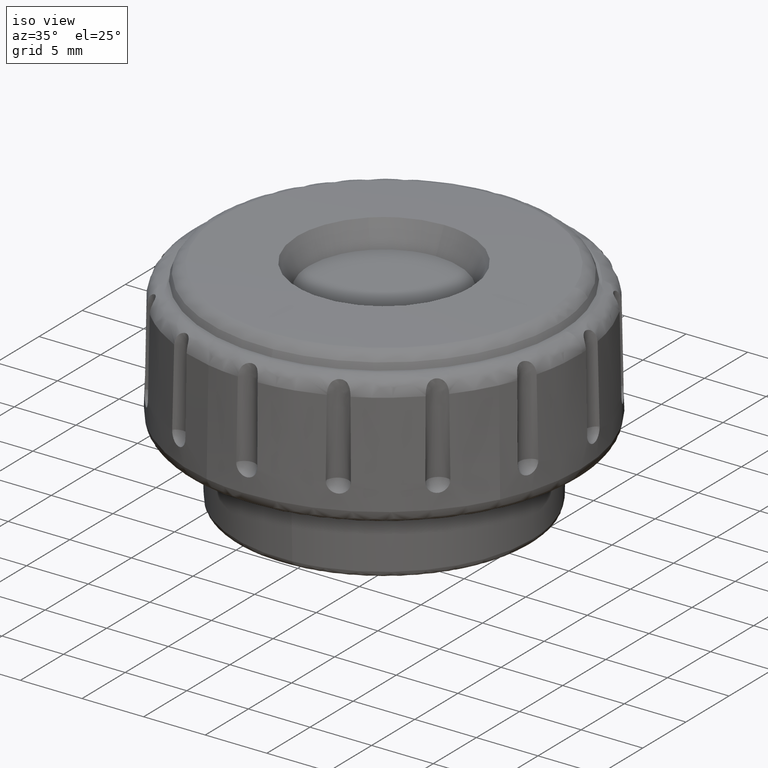
[diagram: clean part render]
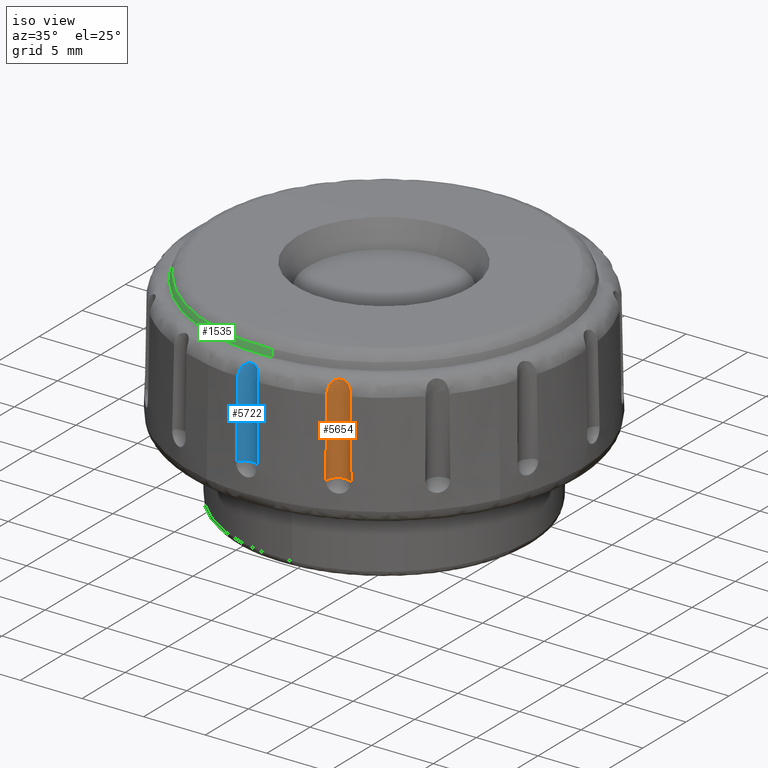
[diagram: same view with three faces highlighted in distinct colors, each labeled with its STEP entity id]
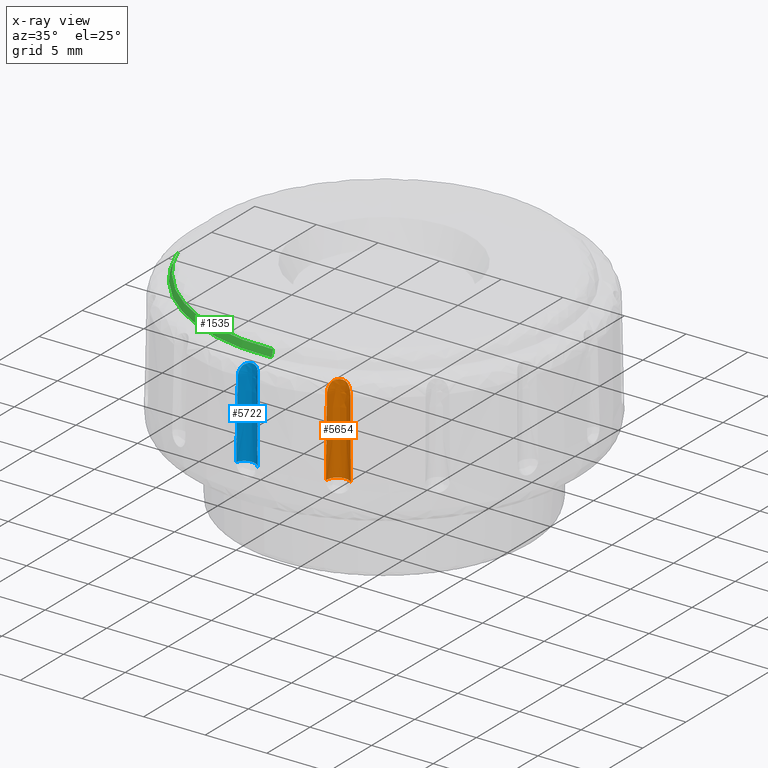
[diagram: x-ray of the same camera — body ghosted, the three highlighted faces saturated]
A machine part, iso view with three faces highlighted in distinct colors.
The next image is the same camera in x-ray (body ghosted, the three faces saturated) — at least one of them is partly hidden behind the body in this view.
Their STEP definitions:

[orange] entity #5654 — the highlighted face is a freeform B-spline surface patch.
#1661=CARTESIAN_POINT('',(7.155010178623190,-14.099589164040040,15.326313504426750));
#1662=VERTEX_POINT('',#1661);
#1676=CARTESIAN_POINT('',(7.252637012994430,-14.191353394448839,9.099991000000141));
#1677=VERTEX_POINT('',#1676);
#1678=CARTESIAN_POINT('',(7.252637012994433,-14.191353394448850,9.099991000000141));
#1679=CARTESIAN_POINT('',(7.223180425894960,-14.159211945075230,11.175456212780770));
#1680=CARTESIAN_POINT('',(7.190818944673186,-14.128543288575480,13.250901112458671));
#1681=CARTESIAN_POINT('',(7.155010178623210,-14.099589164040051,15.326313504426750));
#1682=QUASI_UNIFORM_CURVE('',3,(#1678,#1679,#1680,#1681),.UNSPECIFIED.,.F.,.U.);
#1683=EDGE_CURVE('',#1677,#1662,#1682,.T.);
#1685=CARTESIAN_POINT('',(5.693269439400051,-14.885628569153020,9.099991000000120));
#1686=VERTEX_POINT('',#1685);
#1737=CARTESIAN_POINT('',(5.690400429287561,-14.751675437226821,15.326313504426750));
#1738=VERTEX_POINT('',#1737);
#1739=CARTESIAN_POINT('',(5.690400429287561,-14.751675437226830,15.326313504426750));
#1740=CARTESIAN_POINT('',(5.687956795890854,-14.797660625099700,13.250901213142811));
#1741=CARTESIAN_POINT('',(5.689093991753419,-14.842231232940700,11.175456137433750));
#1742=CARTESIAN_POINT('',(5.693269439400052,-14.885628569153040,9.099991000000120));
#1743=QUASI_UNIFORM_CURVE('',3,(#1739,#1740,#1741,#1742),.UNSPECIFIED.,.F.,.U.);
#1744=EDGE_CURVE('',#1738,#1686,#1743,.T.);
#4410=CARTESIAN_POINT('',(7.155010178623179,-14.099589164040040,15.326313504426750));
#4411=CARTESIAN_POINT('',(7.153872079229410,-14.098668923685070,15.392275721103600));
#4412=CARTESIAN_POINT('',(7.148539027649565,-14.094299853092020,15.457215844345249));
#4413=CARTESIAN_POINT('',(7.129177985886060,-14.079364062275941,15.585084659193910));
#4414=CARTESIAN_POINT('',(7.115112860406698,-14.068754201411579,15.648165348789490));
#4415=CARTESIAN_POINT('',(7.076418985129701,-14.042400173702790,15.771480120165689));
#4416=CARTESIAN_POINT('',(7.052274401676002,-14.026993939427390,15.830187260820811));
#4417=CARTESIAN_POINT('',(7.007424465464729,-14.002362371140689,15.913622888200081));
#4418=CARTESIAN_POINT('',(6.991024899165778,-13.993902433491490,15.940659858825740));
#4419=CARTESIAN_POINT('',(6.954928545796283,-13.976881949035810,15.993099398981199));
#4420=CARTESIAN_POINT('',(6.935289303765049,-13.968362239756109,16.018370617664150));
#4421=CARTESIAN_POINT('',(6.872469715871786,-13.944017231579590,16.089836993467131));
#4422=CARTESIAN_POINT('',(6.824858456605252,-13.929128694227231,16.132419336099549));
#4423=CARTESIAN_POINT('',(6.717624058069604,-13.906972231732640,16.206696576304651));
#4424=CARTESIAN_POINT('',(6.660258309357451,-13.900193439262720,16.236916716465380));
#4425=CARTESIAN_POINT('',(6.569122926503893,-13.899143389727969,16.273372733730451));
#4426=CARTESIAN_POINT('',(6.537611612275643,-13.900352380077109,16.284103694936629));
#4427=CARTESIAN_POINT('',(6.474586606004428,-13.906191922838360,16.302198413553530));
#4428=CARTESIAN_POINT('',(6.443059561454811,-13.910785872488860,16.309608231862089));
#4429=CARTESIAN_POINT('',(6.380067265446056,-13.923463378222630,16.321470491403609));
#4430=CARTESIAN_POINT('',(6.348601795765532,-13.931545253071469,16.325923424713789));
#4431=CARTESIAN_POINT('',(6.285794141848523,-13.951453023181161,16.331938362176221));
#4432=CARTESIAN_POINT('',(6.254943466534269,-13.963139377276940,16.333442616285950));
#4433=CARTESIAN_POINT('',(6.195103786972684,-13.989611566164230,16.333568197326350));
#4434=CARTESIAN_POINT('',(6.165986504078414,-14.004437636349691,16.332201752975369));
#4435=CARTESIAN_POINT('',(6.109360703456350,-14.037272097609470,16.326516220408550));
#4436=CARTESIAN_POINT('',(6.081714636102221,-14.055409816732441,16.322144624058801));
#4437=CARTESIAN_POINT('',(6.029660307390033,-14.093717537669241,16.310487336771359));
#4438=CARTESIAN_POINT('',(6.005056914140068,-14.113979221621459,16.303198625291209));
#4439=CARTESIAN_POINT('',(5.958569259411425,-14.156485693716700,16.285489112634881));
#4440=CARTESIAN_POINT('',(5.936591930343115,-14.178839377608631,16.275010779707198));
#4441=CARTESIAN_POINT('',(5.875313556136472,-14.247846847711330,16.238602871068771));
#4442=CARTESIAN_POINT('',(5.841669095699775,-14.295158960809211,16.208460699983139));
#4443=CARTESIAN_POINT('',(5.799977422945171,-14.365863587420360,16.153291029476762));
#4444=CARTESIAN_POINT('',(5.787620073782566,-14.389306200205370,16.133261844905380));
#4445=CARTESIAN_POINT('',(5.766063632782382,-14.434489351810230,16.090859748792742));
#4446=CARTESIAN_POINT('',(5.756765933131971,-14.456393644669181,16.068364298256711));
#4447=CARTESIAN_POINT('',(5.740603058117427,-14.498587612265350,16.020775310077280));
#4448=CARTESIAN_POINT('',(5.733710562348033,-14.518977953581510,15.995538181463861));
#4449=CARTESIAN_POINT('',(5.722070583673449,-14.557347453599331,15.943208481862390));
#4450=CARTESIAN_POINT('',(5.717314969428277,-14.575312270280580,15.916170960119111));
#4451=CARTESIAN_POINT('',(5.709385927126546,-14.608797425340420,15.860425718516611));
#4452=CARTESIAN_POINT('',(5.706213849121438,-14.624317979147680,15.831717933635810));
#4453=CARTESIAN_POINT('',(5.701026223483047,-14.652879611350491,15.772672126267000));
#4454=CARTESIAN_POINT('',(5.699011033868906,-14.665937812188821,15.742256066367601));
#4455=CARTESIAN_POINT('',(5.694252125510992,-14.700752129798980,15.650174610634000));
#4456=CARTESIAN_POINT('',(5.692698057501048,-14.718441833733509,15.587218446226860));
#4457=CARTESIAN_POINT('',(5.690804739832751,-14.743205357754350,15.458347906808440));
#4458=CARTESIAN_POINT('',(5.690478195154371,-14.750212010675160,15.392361151363779));
#4459=CARTESIAN_POINT('',(5.690400429287561,-14.751675437226821,15.326313504426750));
#4460=B_SPLINE_CURVE_WITH_KNOTS('',3,(#4410,#4411,#4412,#4413,#4414,#4415,#4416,#4417,#4418,#4419,#4420,#4421,#4422,#4423,#4424,#4425,#4426,#4427,#4428,#4429,#4430,#4431,#4432,#4433,#4434,#4435,#4436,#4437,#4438,#4439,#4440,#4441,#4442,#4443,#4444,#4445,#4446,#4447,#4448,#4449,#4450,#4451,#4452,#4453,#4454,#4455,#4456,#4457,#4458,#4459),.UNSPECIFIED.,.F.,.U.,(4,2,2,2,2,2,2,2,2,2,2,2,2,2,2,2,2,2,2,2,2,2,2,2,4),(0.0,0.062500000000001,0.125000000000002,0.187500000000003,0.218750000000003,0.250000000000003,0.312500000000002,0.375000000000001,0.406250000000000,0.437499999999999,0.468749999999999,0.499999999999998,0.531249999999997,0.562499999999997,0.593749999999996,0.624999999999996,0.687499999999994,0.718749999999995,0.749999999999996,0.781249999999997,0.812499999999999,0.843750000000000,0.875000000000001,0.937500000000000,1.0),.UNSPECIFIED.);
#4461=EDGE_CURVE('',#1662,#1738,#4460,.T.);
#5287=CARTESIAN_POINT('',(7.252637012994429,-14.191353394448839,9.099991000000141));
#5288=CARTESIAN_POINT('',(6.814916003351801,-13.713735684573345,9.099991000000141));
#5289=CARTESIAN_POINT('',(6.223069418849854,-13.977242761295500,9.099991000000141));
#5290=CARTESIAN_POINT('',(5.631222834347908,-14.240749838017640,9.099991000000141));
#5291=CARTESIAN_POINT('',(5.693269439400053,-14.885628569153020,9.099991000000141));
#5299=(BOUNDED_CURVE()B_SPLINE_CURVE(2,(#5287,#5288,#5289,#5290,#5291),.UNSPECIFIED.,.F.,.U.)B_SPLINE_CURVE_WITH_KNOTS((3,2,3),(0.0,0.500000000000000,1.0),.UNSPECIFIED.)CURVE()GEOMETRIC_REPRESENTATION_ITEM()RATIONAL_B_SPLINE_CURVE((1.0,0.811595594625452,1.0,0.811595594625452,1.0))REPRESENTATION_ITEM(''));
#5300=EDGE_CURVE('',#1677,#1686,#5299,.T.);
#5630=CARTESIAN_POINT('',(7.257918182909921,-14.197166644862010,16.514345387048291));
#5631=CARTESIAN_POINT('',(7.257918182909921,-14.197166644862010,8.914632140323915));
#5632=CARTESIAN_POINT('',(6.812264025186088,-13.702291196213684,16.514345387048294));
#5633=CARTESIAN_POINT('',(6.812264025186088,-13.702291196213684,8.914632140323915));
#5634=CARTESIAN_POINT('',(6.208715614223856,-13.983784808212951,16.514345387048291));
#5635=CARTESIAN_POINT('',(6.208715614223856,-13.983784808212951,8.914632140323915));
#5636=CARTESIAN_POINT('',(5.605167203261628,-14.265278420212214,16.514345387048294));
#5637=CARTESIAN_POINT('',(5.605167203261628,-14.265278420212214,8.914632140323915));
#5638=CARTESIAN_POINT('',(5.697900405394010,-14.924755403278100,16.514345387048291));
#5639=CARTESIAN_POINT('',(5.697900405394010,-14.924755403278100,8.914632140323915));
#5647=(BOUNDED_SURFACE()B_SPLINE_SURFACE(1,2,((#5630,#5632,#5634,#5636,#5638),(#5631,#5633,#5635,#5637,#5639)),.UNSPECIFIED.,.F.,.F.,.U.)B_SPLINE_SURFACE_WITH_KNOTS((2,2),(3,2,3),(0.0,7.599713246724376),(0.0,1.0,2.0),.UNSPECIFIED.)GEOMETRIC_REPRESENTATION_ITEM()RATIONAL_B_SPLINE_SURFACE(((1.0,0.803856860617218,1.0,0.803856860617218,1.0),(1.0,0.803856860617218,1.0,0.803856860617218,1.0)))REPRESENTATION_ITEM('')SURFACE());
#5648=ORIENTED_EDGE('',*,*,#1744,.T.);
#5649=ORIENTED_EDGE('',*,*,#5300,.F.);
#5650=ORIENTED_EDGE('',*,*,#1683,.T.);
#5651=ORIENTED_EDGE('',*,*,#4461,.T.);
#5652=EDGE_LOOP('',(#5648,#5649,#5650,#5651));
#5653=FACE_OUTER_BOUND('',#5652,.T.);
#5654=ADVANCED_FACE('',(#5653),#5647,.F.);

[blue] entity #5722 — the highlighted face is a freeform B-spline surface patch.
#1746=CARTESIAN_POINT('',(0.801607482738218,-15.790820456662001,15.326313504426750));
#1747=VERTEX_POINT('',#1746);
#1761=CARTESIAN_POINT('',(0.853470158791178,-15.914359663412300,9.099991000000141));
#1762=VERTEX_POINT('',#1761);
#1763=CARTESIAN_POINT('',(0.853470158791174,-15.914359663412300,9.099991000000141));
#1764=CARTESIAN_POINT('',(0.839633332670613,-15.873015914981670,11.175456212780770));
#1765=CARTESIAN_POINT('',(0.822543714890227,-15.831836102907220,13.250901112458671));
#1766=CARTESIAN_POINT('',(0.801607482738221,-15.790820456662020,15.326313504426750));
#1767=QUASI_UNIFORM_CURVE('',3,(#1763,#1764,#1765,#1766),.UNSPECIFIED.,.F.,.U.);
#1768=EDGE_CURVE('',#1762,#1747,#1767,.T.);
#1770=CARTESIAN_POINT('',(-0.853470158791143,-15.914359663412300,9.099991000000101));
#1771=VERTEX_POINT('',#1770);
#1820=CARTESIAN_POINT('',(-0.801607482738216,-15.790820456662001,15.326313504426750));
#1821=VERTEX_POINT('',#1820);
#1822=CARTESIAN_POINT('',(-0.801607482738210,-15.790820456662010,15.326313504426750));
#1823=CARTESIAN_POINT('',(-0.822543713874540,-15.831836100917430,13.250901213142800));
#1824=CARTESIAN_POINT('',(-0.839633333172940,-15.873015916482601,11.175456137433740));
#1825=CARTESIAN_POINT('',(-0.853470158791173,-15.914359663412300,9.099991000000101));
#1826=QUASI_UNIFORM_CURVE('',3,(#1822,#1823,#1824,#1825),.UNSPECIFIED.,.F.,.U.);
#1827=EDGE_CURVE('',#1821,#1771,#1826,.T.);
#4356=CARTESIAN_POINT('',(0.801607482738201,-15.790820456661990,15.326313504426750));
#4357=CARTESIAN_POINT('',(0.800942072679481,-15.789516868538859,15.392275721103600));
#4358=CARTESIAN_POINT('',(0.797847148739714,-15.783356376447530,15.457215844345249));
#4359=CARTESIAN_POINT('',(0.786234890399651,-15.761837007457849,15.585084659193910));
#4360=CARTESIAN_POINT('',(0.777701178098277,-15.746423615337090,15.648165348789480));
#4361=CARTESIAN_POINT('',(0.753071712862186,-15.706609796095369,15.771480120165680));
#4362=CARTESIAN_POINT('',(0.737280818333001,-15.682715013931279,15.830187260820811));
#4363=CARTESIAN_POINT('',(0.706326924230261,-15.641970844111601,15.913622888200081));
#4364=CARTESIAN_POINT('',(0.694786141570609,-15.627572001955910,15.940659858825731));
#4365=CARTESIAN_POINT('',(0.668733336623469,-15.597341306097769,15.993099398981190));
#4366=CARTESIAN_POINT('',(0.654257274226700,-15.581570165008531,16.018370617664150));
#4367=CARTESIAN_POINT('',(0.606770731957198,-15.533778865073479,16.089836993467120));
#4368=CARTESIAN_POINT('',(0.569331396024630,-15.500812265637609,16.132419336099542));
#4369=CARTESIAN_POINT('',(0.480379743516834,-15.436955170685611,16.206696576304640));
#4370=CARTESIAN_POINT('',(0.430730707649900,-15.407429683557710,16.236916716465380));
#4371=CARTESIAN_POINT('',(0.347901486236340,-15.369402315887649,16.273372733730440));
#4372=CARTESIAN_POINT('',(0.318622727582656,-15.357689977361339,16.284103694936618));
#4373=CARTESIAN_POINT('',(0.258671363365882,-15.337390085645000,16.302198413553509));
#4374=CARTESIAN_POINT('',(0.228001447365379,-15.328763663214650,16.309608231862079));
#4375=CARTESIAN_POINT('',(0.165298715355378,-15.314723865973731,16.321470491403598));
#4376=CARTESIAN_POINT('',(0.133266383810367,-15.309308866520469,16.325923424713789));
#4377=CARTESIAN_POINT('',(0.067791517283760,-15.301949345162290,16.331938362176210));
#4378=CARTESIAN_POINT('',(0.034854754550503,-15.300077260748960,16.333442616285939));
#4379=CARTESIAN_POINT('',(-0.030578722142656,-15.299921818273180,16.333568197326340));
#4380=CARTESIAN_POINT('',(-0.063208989686853,-15.301623041445900,16.332201752975362));
#4381=CARTESIAN_POINT('',(-0.128294211180517,-15.308587026327411,16.326516220408539));
#4382=CARTESIAN_POINT('',(-0.160927425422691,-15.313911988614340,16.322144624058790));
#4383=CARTESIAN_POINT('',(-0.224062574786062,-15.327735430150820,16.310487336771349));
#4384=CARTESIAN_POINT('',(-0.254780062245951,-15.336238297910800,16.303198625291198));
#4385=CARTESIAN_POINT('',(-0.314537587828770,-15.356161659785030,16.285489112634860));
#4386=CARTESIAN_POINT('',(-0.343706939316824,-15.367643781117071,16.275010779707198));
#4387=CARTESIAN_POINT('',(-0.427755386461750,-15.405761081754830,16.238602871068760));
#4388=CARTESIAN_POINT('',(-0.477734700526785,-15.435298412870759,16.208460699983132));
#4389=CARTESIAN_POINT('',(-0.544580101271023,-15.482932772325270,16.153291029476740));
#4390=CARTESIAN_POINT('',(-0.565404071096123,-15.499322478034580,16.133261844905370));
#4391=CARTESIAN_POINT('',(-0.603474503262124,-15.531831546496090,16.090859748792731));
#4392=CARTESIAN_POINT('',(-0.620877653090686,-15.548060398596130,16.068364298256700));
#4393=CARTESIAN_POINT('',(-0.652805006880782,-15.580032472507639,16.020775310077259));
#4394=CARTESIAN_POINT('',(-0.667395114060829,-15.595856545605150,15.995538181463861));
#4395=CARTESIAN_POINT('',(-0.693635045339801,-15.626174422206869,15.943208481862390));
#4396=CARTESIAN_POINT('',(-0.705286464362188,-15.640651816309580,15.916170960119119));
#4397=CARTESIAN_POINT('',(-0.726149644502300,-15.668016995564340,15.860425718516611));
#4398=CARTESIAN_POINT('',(-0.735360259909395,-15.680905526635680,15.831717933635810));
#4399=CARTESIAN_POINT('',(-0.751716454150236,-15.704887878559729,15.772672126267009));
#4400=CARTESIAN_POINT('',(-0.758868670242117,-15.715997487161751,15.742256066367601));
#4401=CARTESIAN_POINT('',(-0.777376408031555,-15.745866326465240,15.650174610634000));
#4402=CARTESIAN_POINT('',(-0.785991170598242,-15.761394578736191,15.587218446226860));
#4403=CARTESIAN_POINT('',(-0.797793034984957,-15.783247101947980,15.458347906808450));
#4404=CARTESIAN_POINT('',(-0.800941210880814,-15.789515180210760,15.392361151363790));
#4405=CARTESIAN_POINT('',(-0.801607482738216,-15.790820456662001,15.326313504426750));
#4406=B_SPLINE_CURVE_WITH_KNOTS('',3,(#4356,#4357,#4358,#4359,#4360,#4361,#4362,#4363,#4364,#4365,#4366,#4367,#4368,#4369,#4370,#4371,#4372,#4373,#4374,#4375,#4376,#4377,#4378,#4379,#4380,#4381,#4382,#4383,#4384,#4385,#4386,#4387,#4388,#4389,#4390,#4391,#4392,#4393,#4394,#4395,#4396,#4397,#4398,#4399,#4400,#4401,#4402,#4403,#4404,#4405),.UNSPECIFIED.,.F.,.U.,(4,2,2,2,2,2,2,2,2,2,2,2,2,2,2,2,2,2,2,2,2,2,2,2,4),(0.0,0.062499999999999,0.124999999999999,0.187499999999998,0.218749999999999,0.249999999999999,0.312500000000000,0.375000000000002,0.406250000000003,0.437500000000003,0.468750000000004,0.500000000000005,0.531250000000006,0.562500000000006,0.593750000000007,0.625000000000008,0.687500000000010,0.718750000000010,0.750000000000010,0.781250000000010,0.812500000000010,0.843750000000009,0.875000000000009,0.937500000000004,1.0),.UNSPECIFIED.);
#4407=EDGE_CURVE('',#1747,#1821,#4406,.T.);
#5680=CARTESIAN_POINT('',(0.853470158791174,-15.914359663412300,9.099991000000141));
#5681=CARTESIAN_POINT('',(0.647856742705720,-15.299997000000099,9.099991000000141));
#5682=CARTESIAN_POINT('',(1.983862E-015,-15.299997000000101,9.099991000000141));
#5683=CARTESIAN_POINT('',(-0.647856742705708,-15.299997000000099,9.099991000000141));
#5684=CARTESIAN_POINT('',(-0.853470158791167,-15.914359663412290,9.099991000000141));
#5692=(BOUNDED_CURVE()B_SPLINE_CURVE(2,(#5680,#5681,#5682,#5683,#5684),.UNSPECIFIED.,.F.,.U.)B_SPLINE_CURVE_WITH_KNOTS((3,2,3),(0.0,0.500000000000000,1.0),.UNSPECIFIED.)CURVE()GEOMETRIC_REPRESENTATION_ITEM()RATIONAL_B_SPLINE_CURVE((1.0,0.811595594625454,1.0,0.811595594625454,1.0))REPRESENTATION_ITEM(''));
#5693=EDGE_CURVE('',#1762,#1771,#5692,.T.);
#5698=CARTESIAN_POINT('',(0.855930285620099,-15.921818377244330,16.514345387048269));
#5699=CARTESIAN_POINT('',(0.855930285620099,-15.921818377244330,8.914632140323896));
#5700=CARTESIAN_POINT('',(0.650088932875791,-15.288463282947443,16.514345387048269));
#5701=CARTESIAN_POINT('',(0.650088932875791,-15.288463282947443,8.914632140323896));
#5702=CARTESIAN_POINT('',(-0.015773743218027,-15.300135238936280,16.514345387048269));
#5703=CARTESIAN_POINT('',(-0.015773743218027,-15.300135238936280,8.914632140323896));
#5704=CARTESIAN_POINT('',(-0.681636419311844,-15.311807194925109,16.514345387048269));
#5705=CARTESIAN_POINT('',(-0.681636419311844,-15.311807194925109,8.914632140323896));
#5706=CARTESIAN_POINT('',(-0.865153878009124,-15.951987388561809,16.514345387048269));
#5707=CARTESIAN_POINT('',(-0.865153878009124,-15.951987388561809,8.914632140323896));
#5715=(BOUNDED_SURFACE()B_SPLINE_SURFACE(1,2,((#5698,#5700,#5702,#5704,#5706),(#5699,#5701,#5703,#5705,#5707)),.UNSPECIFIED.,.F.,.F.,.U.)B_SPLINE_SURFACE_WITH_KNOTS((2,2),(3,2,3),(0.0,7.599713246724378),(0.0,1.0,2.0),.UNSPECIFIED.)GEOMETRIC_REPRESENTATION_ITEM()RATIONAL_B_SPLINE_SURFACE(((1.0,0.803856860617218,1.0,0.803856860617218,1.0),(1.0,0.803856860617218,1.0,0.803856860617218,1.0)))REPRESENTATION_ITEM('')SURFACE());
#5716=ORIENTED_EDGE('',*,*,#1827,.T.);
#5717=ORIENTED_EDGE('',*,*,#5693,.F.);
#5718=ORIENTED_EDGE('',*,*,#1768,.T.);
#5719=ORIENTED_EDGE('',*,*,#4407,.T.);
#5720=EDGE_LOOP('',(#5716,#5717,#5718,#5719));
#5721=FACE_OUTER_BOUND('',#5720,.T.);
#5722=ADVANCED_FACE('',(#5721),#5715,.F.);

[green] entity #1535 — the highlighted face is a freeform B-spline surface patch.
#1346=CARTESIAN_POINT('',(-13.386852536119790,-5.028136793272843,16.599995626887370));
#1347=VERTEX_POINT('',#1346);
#1363=CARTESIAN_POINT('',(-13.208094983608211,-4.960994989446715,17.124623626886901));
#1364=VERTEX_POINT('',#1363);
#1365=CARTESIAN_POINT('',(-13.208094983608211,-4.960994989446715,17.124623626886901));
#1366=CARTESIAN_POINT('',(-13.386852536119790,-5.028136793272843,16.599995626887370));
#1367=QUASI_UNIFORM_CURVE('',1,(#1365,#1366),.UNSPECIFIED.,.F.,.U.);
#1368=EDGE_CURVE('',#1364,#1347,#1367,.T.);
#1432=CARTESIAN_POINT('',(0.861336793931195,-14.082732096747860,17.124623626884929));
#1433=VERTEX_POINT('',#1432);
#1447=CARTESIAN_POINT('',(0.872994073602696,-14.273326934641331,16.599995626885249));
#1448=VERTEX_POINT('',#1447);
#1449=CARTESIAN_POINT('',(0.861336793931195,-14.082732096747860,17.124623626884929));
#1450=CARTESIAN_POINT('',(0.872994073602696,-14.273326934641331,16.599995626885249));
#1451=QUASI_UNIFORM_CURVE('',1,(#1449,#1450),.UNSPECIFIED.,.F.,.U.);
#1452=EDGE_CURVE('',#1433,#1448,#1451,.T.);
#1487=CARTESIAN_POINT('',(0.861045333476222,-14.077966760706380,17.137740607097680));
#1488=CARTESIAN_POINT('',(-9.539701957722903,-14.714103716559169,17.137740607097680));
#1489=CARTESIAN_POINT('',(-13.203625608588718,-4.959316280504312,17.137740607097683));
#1490=CARTESIAN_POINT('',(0.873292792089905,-14.278210938989609,16.586552002382859));
#1491=CARTESIAN_POINT('',(-9.675394122085939,-14.923396269807723,16.586552002382852));
#1492=CARTESIAN_POINT('',(-13.391433209309220,-5.029857306088207,16.586552002382859));
#1500=(BOUNDED_SURFACE()B_SPLINE_SURFACE(2,1,((#1487,#1490),(#1488,#1491),(#1489,#1492)),.UNSPECIFIED.,.F.,.F.,.U.)B_SPLINE_SURFACE_WITH_KNOTS((3,3),(2,2),(0.0,18.831657407131878),(0.0,1.0),.UNSPECIFIED.)GEOMETRIC_REPRESENTATION_ITEM()RATIONAL_B_SPLINE_SURFACE(((1.0,1.0),(0.765685424949238,0.765685424949238),(0.906274169979695,0.906274169979695)))REPRESENTATION_ITEM('')SURFACE());
#1501=CARTESIAN_POINT('',(0.872994073602696,-14.273326934641327,16.599995626885256));
#1502=CARTESIAN_POINT('',(0.436904494285213,-14.299999315932622,16.599995626888102));
#1503=CARTESIAN_POINT('',(0.0,-14.299999315932620,16.599995626888099));
#1504=CARTESIAN_POINT('',(-9.904316744632798,-14.299999315932613,16.599995626888099));
#1505=CARTESIAN_POINT('',(-13.386852536119791,-5.028136793272844,16.599995626887370));
#1513=(BOUNDED_CURVE()B_SPLINE_CURVE(2,(#1501,#1502,#1503,#1504,#1505),.UNSPECIFIED.,.F.,.U.)B_SPLINE_CURVE_WITH_KNOTS((3,2,3),(0.739332962241594,0.750000000000000,0.940284170898823),.UNSPECIFIED.)CURVE()GEOMETRIC_REPRESENTATION_ITEM()RATIONAL_B_SPLINE_CURVE((0.976072041672399,0.987502787902943,1.0,0.777068226784778,0.893499554635660))REPRESENTATION_ITEM(''));
#1514=EDGE_CURVE('',#1448,#1347,#1513,.T.);
#1515=ORIENTED_EDGE('',*,*,#1514,.F.);
#1516=ORIENTED_EDGE('',*,*,#1452,.F.);
#1517=CARTESIAN_POINT('',(0.861336793931195,-14.082732096747856,17.124623626884937));
#1518=CARTESIAN_POINT('',(0.431070413581802,-14.109048315932602,17.124623626888003));
#1519=CARTESIAN_POINT('',(0.0,-14.109048315932601,17.124623626887999));
#1520=CARTESIAN_POINT('',(-9.772062249722376,-14.109048315932604,17.124623626887999));
#1521=CARTESIAN_POINT('',(-13.208094983608209,-4.960994989446715,17.124623626886905));
#1529=(BOUNDED_CURVE()B_SPLINE_CURVE(2,(#1517,#1518,#1519,#1520,#1521),.UNSPECIFIED.,.F.,.U.)B_SPLINE_CURVE_WITH_KNOTS((3,2,3),(0.739332962241559,0.750000000000000,0.940284170898777),.UNSPECIFIED.)CURVE()GEOMETRIC_REPRESENTATION_ITEM()RATIONAL_B_SPLINE_CURVE((0.976072041672324,0.987502787902902,1.0,0.777068226784832,0.893499554635604))REPRESENTATION_ITEM(''));
#1530=EDGE_CURVE('',#1433,#1364,#1529,.T.);
#1531=ORIENTED_EDGE('',*,*,#1530,.T.);
#1532=ORIENTED_EDGE('',*,*,#1368,.T.);
#1533=EDGE_LOOP('',(#1515,#1516,#1531,#1532));
#1534=FACE_OUTER_BOUND('',#1533,.T.);
#1535=ADVANCED_FACE('',(#1534),#1500,.T.);